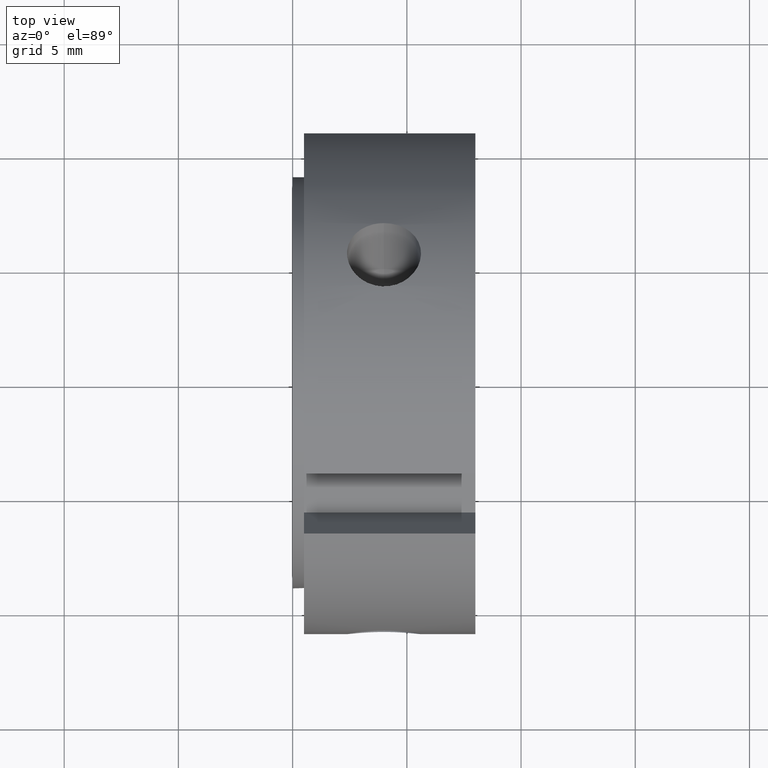
[diagram: clean part render]
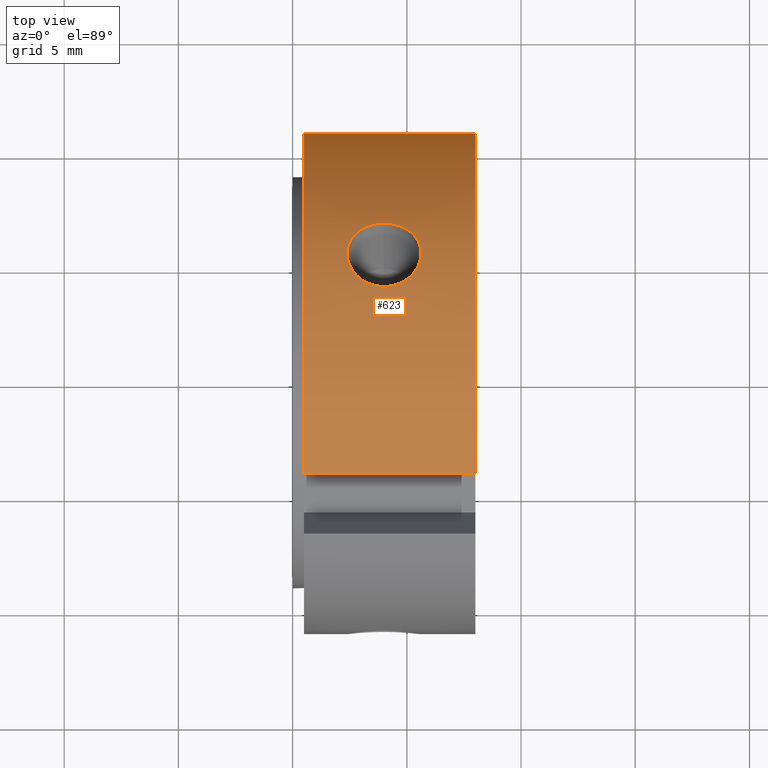
[diagram: same view with one face highlighted and labeled with its STEP entity id]
A machine part, top view. The second image highlights one B-rep face of the part: STEP entity #623.
In plain terms, the highlighted cylindrical surface (partial cylindrical patch) has radius 11 mm, axis along (1, 0, 0).
Its self-contained STEP definition (entity closure, byte-faithful):
#183=CARTESIAN_POINT('',(3.999999999999996,6.843780281354484,8.611775163143978));
#184=VERTEX_POINT('',#183);
#185=CARTESIAN_POINT('',(3.999999999999996,6.843780281354483,8.611775163143978));
#186=CARTESIAN_POINT('',(4.203857230095092,6.843780281354483,8.611775163143978));
#187=CARTESIAN_POINT('',(4.421096422425316,6.811605609383767,8.637650585633573));
#188=CARTESIAN_POINT('',(4.820387515019100,6.679632714814055,8.740107856688494));
#189=CARTESIAN_POINT('',(5.002465229547891,6.579679271757774,8.816388886074458));
#190=CARTESIAN_POINT('',(5.289972621900516,6.345751955535164,8.986229673803914));
#191=CARTESIAN_POINT('',(5.414677187542505,6.196071175604074,9.091132402150105));
#192=CARTESIAN_POINT('',(5.580199034970113,5.861556254706977,9.310324625808585));
#193=CARTESIAN_POINT('',(5.620999999999996,5.676542674652554,9.424352480894713));
#194=CARTESIAN_POINT('',(5.620999999999996,5.323457325347452,9.628206402362929));
#195=CARTESIAN_POINT('',(5.580199034970113,5.132199516076602,9.731418935192099));
#196=CARTESIAN_POINT('',(5.414677187542505,4.775116021627809,9.911521242804689));
#197=CARTESIAN_POINT('',(5.289972621900514,4.609427203988165,9.988697236510184));
#198=CARTESIAN_POINT('',(5.002465229547890,4.345377109104392,10.106363841133351));
#199=CARTESIAN_POINT('',(4.820387515019100,4.229339078301181,10.154785547322831));
#200=CARTESIAN_POINT('',(4.421096422425315,4.074622031480335,10.217848791103705));
#201=CARTESIAN_POINT('',(4.203857230095093,4.036125922285328,10.232775163143980));
#202=CARTESIAN_POINT('',(3.796142769904900,4.036125922285328,10.232775163143980));
#203=CARTESIAN_POINT('',(3.578903577574677,4.074622031480335,10.217848791103705));
#204=CARTESIAN_POINT('',(3.179612484980892,4.229339078301181,10.154785547322831));
#205=CARTESIAN_POINT('',(2.997534770452102,4.345377109104392,10.106363841133351));
#206=CARTESIAN_POINT('',(2.710027378099477,4.609427203988166,9.988697236510184));
#207=CARTESIAN_POINT('',(2.585322812457488,4.775116021627809,9.911521242804689));
#208=CARTESIAN_POINT('',(2.419800965029880,5.132199516076602,9.731418935192099));
#209=CARTESIAN_POINT('',(2.378999999999996,5.323457325347452,9.628206402362929));
#210=CARTESIAN_POINT('',(2.378999999999996,5.676542674652554,9.424352480894713));
#211=CARTESIAN_POINT('',(2.419800965029880,5.861556254706977,9.310324625808585));
#212=CARTESIAN_POINT('',(2.585322812457487,6.196071175604075,9.091132402150105));
#213=CARTESIAN_POINT('',(2.710027378099476,6.345751955535164,8.986229673803914));
#214=CARTESIAN_POINT('',(2.997534770452100,6.579679271757774,8.816388886074458));
#215=CARTESIAN_POINT('',(3.179612484980892,6.679632714814055,8.740107856688494));
#216=CARTESIAN_POINT('',(3.578903577574677,6.811605609383767,8.637650585633573));
#217=CARTESIAN_POINT('',(3.796142769904900,6.843780281354483,8.611775163143978));
#218=CARTESIAN_POINT('',(3.999999999999995,6.843780281354483,8.611775163143978));
#219=B_SPLINE_CURVE_WITH_KNOTS('',3,(#185,#186,#187,#188,#189,#190,#191,#192,#193,#194,#195,#196,#197,#198,#199,#200,#201,#202,#203,#204,#205,#206,#207,#208,#209,#210,#211,#212,#213,#214,#215,#216,#217,#218),.UNSPECIFIED.,.T.,.U.,(4,2,2,2,2,2,2,2,2,2,2,2,2,2,2,2,4),(0.0,0.061157169028529,0.122314338057058,0.183470514497522,0.244626690937986,0.305782867378451,0.366939043818915,0.428096212847444,0.489253381875973,0.550410550904502,0.611567719933030,0.672723896373495,0.733880072813959,0.795036249254423,0.856192425694888,0.917349594723416,0.978506763751945),.UNSPECIFIED.);
#220=EDGE_CURVE('',#184,#184,#219,.T.);
#273=CARTESIAN_POINT('',(0.499999999999998,-4.149585573749180,10.187293044088436));
#274=VERTEX_POINT('',#273);
#289=CARTESIAN_POINT('',(7.999999999999996,-4.149585573749180,10.187293044088436));
#290=VERTEX_POINT('',#289);
#297=CARTESIAN_POINT('',(0.499999999999998,-4.149585573749180,10.187293044088435));
#298=DIRECTION('',(1.0,0.0,0.0));
#299=VECTOR('',#298,7.499999999999998);
#300=LINE('',#297,#299);
#301=EDGE_CURVE('',#274,#290,#300,.T.);
#471=CARTESIAN_POINT('',(0.499999999999998,10.897247358851681,1.500000000000000));
#472=VERTEX_POINT('',#471);
#473=CARTESIAN_POINT('',(0.499999999999998,0.0,0.0));
#474=DIRECTION('',(1.0,0.0,0.0));
#475=DIRECTION('',(0.0,1.0,0.0));
#476=AXIS2_PLACEMENT_3D('',#473,#474,#475);
#477=CIRCLE('',#476,10.999999999999996);
#478=EDGE_CURVE('',#472,#274,#477,.T.);
#565=CARTESIAN_POINT('',(7.999999999999996,10.897247358851681,1.500000000000000));
#566=VERTEX_POINT('',#565);
#573=CARTESIAN_POINT('',(7.999999999999996,0.0,0.0));
#574=DIRECTION('',(1.0,0.0,0.0));
#575=DIRECTION('',(0.0,1.0,0.0));
#576=AXIS2_PLACEMENT_3D('',#573,#574,#575);
#577=CIRCLE('',#576,10.999999999999998);
#578=EDGE_CURVE('',#566,#290,#577,.T.);
#604=CARTESIAN_POINT('',(4.249999999999997,0.0,0.0));
#605=DIRECTION('',(1.0,0.0,0.0));
#606=DIRECTION('',(0.0,1.0,0.0));
#607=AXIS2_PLACEMENT_3D('',#604,#605,#606);
#608=CYLINDRICAL_SURFACE('',#607,10.999999999999996);
#609=ORIENTED_EDGE('',*,*,#301,.T.);
#610=ORIENTED_EDGE('',*,*,#578,.F.);
#611=CARTESIAN_POINT('',(7.999999999999996,10.897247358851681,1.500000000000000));
#612=DIRECTION('',(-1.0,0.0,0.0));
#613=VECTOR('',#612,7.499999999999998);
#614=LINE('',#611,#613);
#615=EDGE_CURVE('',#566,#472,#614,.T.);
#616=ORIENTED_EDGE('',*,*,#615,.T.);
#617=ORIENTED_EDGE('',*,*,#478,.T.);
#618=EDGE_LOOP('',(#609,#610,#616,#617));
#619=FACE_OUTER_BOUND('',#618,.T.);
#620=ORIENTED_EDGE('',*,*,#220,.T.);
#621=EDGE_LOOP('',(#620));
#622=FACE_BOUND('',#621,.T.);
#623=ADVANCED_FACE('',(#619,#622),#608,.T.);